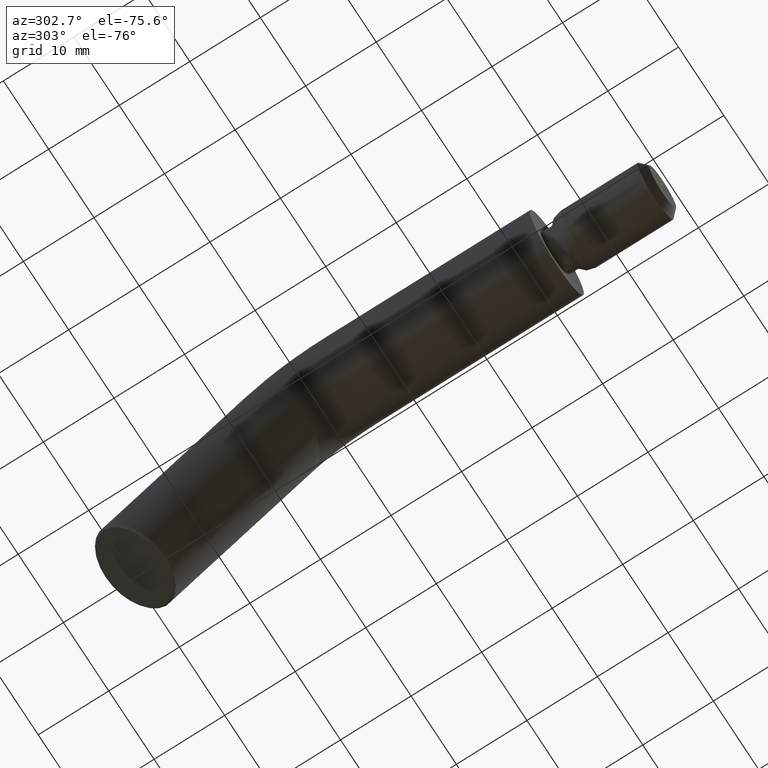
[diagram: clean part render]
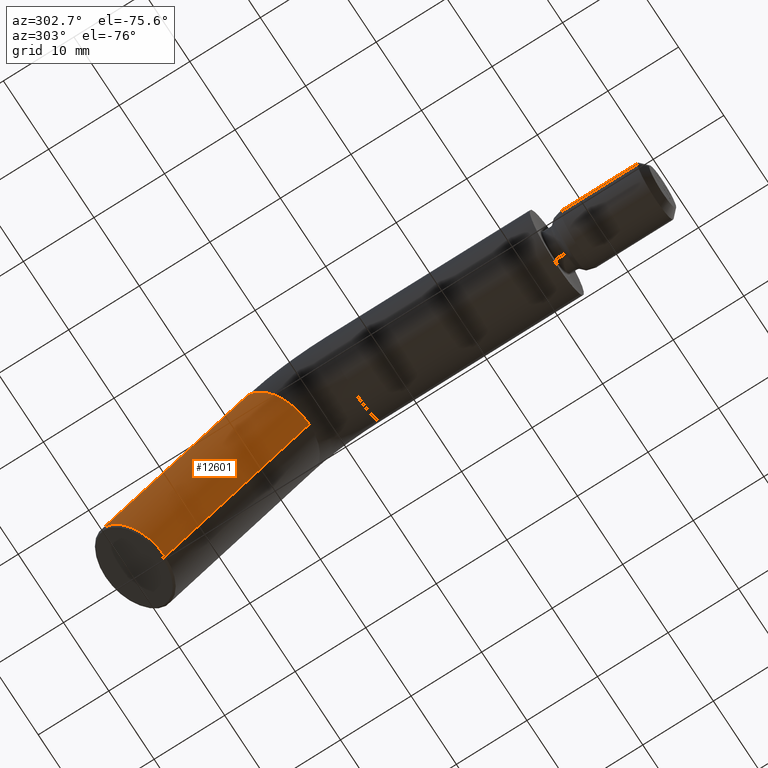
[diagram: same view with one face highlighted and labeled with its STEP entity id]
A machine part, auxiliary view. The second image highlights one B-rep face of the part: STEP entity #12601.
In plain terms, the highlighted cylindrical surface (partial cylindrical patch) has radius 6 mm, axis along (0, 0.7071, -0.7071).
Its self-contained STEP definition (entity closure, byte-faithful):
#13 = AXIS2_PLACEMENT_3D ( 'NONE', #5102, #2123, #8073 ) ;
#249 = AXIS2_PLACEMENT_3D ( 'NONE', #6777, #7819, #12620 ) ;
#456 = CARTESIAN_POINT ( 'NONE',  ( 7.347880794884120700E-016, 35.15075759508259500, -8.636038969321081300 ) ) ;
#503 = CARTESIAN_POINT ( 'NONE',  ( 0.0000000000000000000, 64.06586399182259600, -20.58058261758401700 ) ) ;
#541 = VECTOR ( 'NONE', #7817, 999.9999999999998900 ) ;
#905 = ORIENTED_EDGE ( 'NONE', *, *, #3204, .T. ) ;
#1263 = VERTEX_POINT ( 'NONE', #4447 ) ;
#1946 = ORIENTED_EDGE ( 'NONE', *, *, #7643, .T. ) ;
#2123 = DIRECTION ( 'NONE',  ( 0.0000000000000000000, 0.7071067811865462400, -0.7071067811865487900 ) ) ;
#2180 = CYLINDRICAL_SURFACE ( 'NONE', #13, 5.999999999999999100 ) ;
#2900 = CARTESIAN_POINT ( 'NONE',  ( 0.0000000000000000000, 43.63603896932117700, -0.1507575950825254300 ) ) ;
#3204 = EDGE_CURVE ( 'NONE', #1263, #3396, #6759, .T. ) ;
#3261 = CARTESIAN_POINT ( 'NONE',  ( 7.347880794884120700E-016, 55.58058261758411300, -29.06586399182267400 ) ) ;
#3267 = ORIENTED_EDGE ( 'NONE', *, *, #8636, .T. ) ;
#3396 = VERTEX_POINT ( 'NONE', #6987 ) ;
#3460 = CIRCLE ( 'NONE', #249, 5.999999999999998200 ) ;
#3580 = DIRECTION ( 'NONE',  ( 0.0000000000000000000, 0.7071067811865485700, 0.7071067811865465700 ) ) ;
#4255 = LINE ( 'NONE', #456, #4714 ) ;
#4400 = VERTEX_POINT ( 'NONE', #3261 ) ;
#4447 = CARTESIAN_POINT ( 'NONE',  ( 7.347880794884120700E-016, 35.15075759508259500, -8.636038969321081300 ) ) ;
#4714 = VECTOR ( 'NONE', #10595, 999.9999999999998900 ) ;
#5055 = AXIS2_PLACEMENT_3D ( 'NONE', #5437, #12358, #3580 ) ;
#5102 = CARTESIAN_POINT ( 'NONE',  ( 0.0000000000000000000, 39.39339828220188600, -4.393398282201803600 ) ) ;
#5420 = EDGE_CURVE ( 'NONE', #1263, #4400, #4255, .T. ) ;
#5437 = CARTESIAN_POINT ( 'NONE',  ( 0.0000000000000000000, 39.39339828220188600, -4.393398282201803600 ) ) ;
#6702 = ORIENTED_EDGE ( 'NONE', *, *, #5420, .F. ) ;
#6759 = CIRCLE ( 'NONE', #5055, 5.999999999999999100 ) ;
#6777 = CARTESIAN_POINT ( 'NONE',  ( 0.0000000000000000000, 59.82322330470335500, -24.82322330470334400 ) ) ;
#6987 = CARTESIAN_POINT ( 'NONE',  ( 0.0000000000000000000, 43.63603896932117700, -0.1507575950825262900 ) ) ;
#7643 = EDGE_CURVE ( 'NONE', #8939, #4400, #3460, .T. ) ;
#7778 = LINE ( 'NONE', #2900, #541 ) ;
#7817 = DIRECTION ( 'NONE',  ( 0.0000000000000000000, 0.7071067811865462400, -0.7071067811865489100 ) ) ;
#7819 = DIRECTION ( 'NONE',  ( 0.0000000000000000000, -0.7071067811865544600, 0.7071067811865405800 ) ) ;
#8073 = DIRECTION ( 'NONE',  ( 0.0000000000000000000, 0.7071067811865485700, 0.7071067811865463500 ) ) ;
#8390 = EDGE_LOOP ( 'NONE', ( #6702, #905, #3267, #1946 ) ) ;
#8636 = EDGE_CURVE ( 'NONE', #3396, #8939, #7778, .T. ) ;
#8939 = VERTEX_POINT ( 'NONE', #503 ) ;
#10595 = DIRECTION ( 'NONE',  ( 0.0000000000000000000, 0.7071067811865462400, -0.7071067811865489100 ) ) ;
#12358 = DIRECTION ( 'NONE',  ( 0.0000000000000000000, 0.7071067811865463500, -0.7071067811865487900 ) ) ;
#12432 = FACE_OUTER_BOUND ( 'NONE', #8390, .T. ) ;
#12601 = ADVANCED_FACE ( 'NONE', ( #12432 ), #2180, .T. ) ;
#12620 = DIRECTION ( 'NONE',  ( 0.0000000000000000000, 0.7071067811865405800, 0.7071067811865544600 ) ) ;